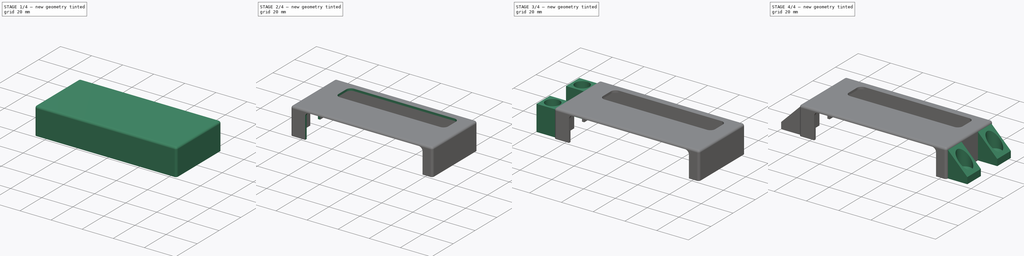
[diagram: build sequence overview — one tinted view per stage of 4, left to right]
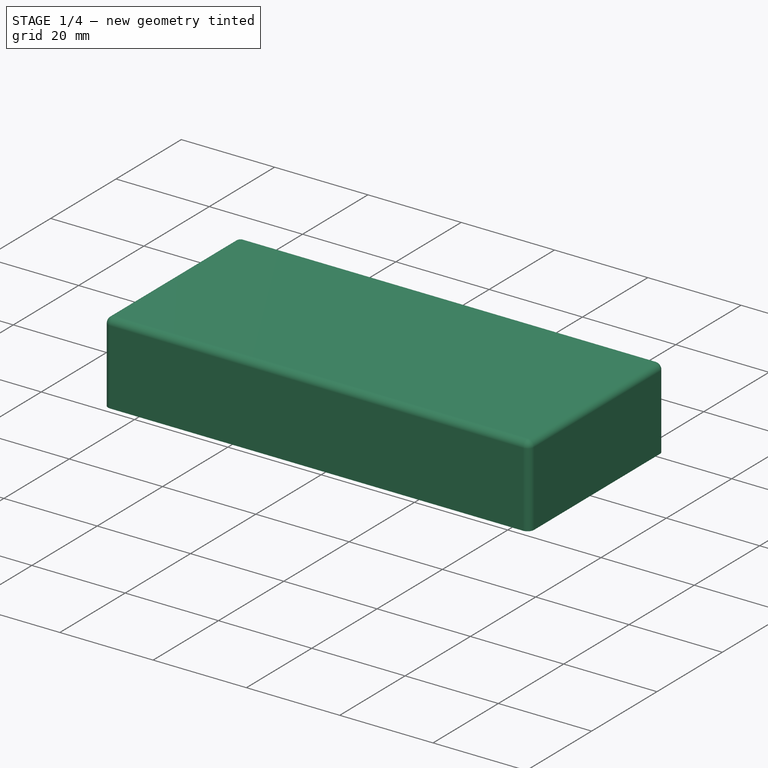
[diagram: stage 1 of 4 — iso view after this stage's code; geometry added in this stage tinted green]
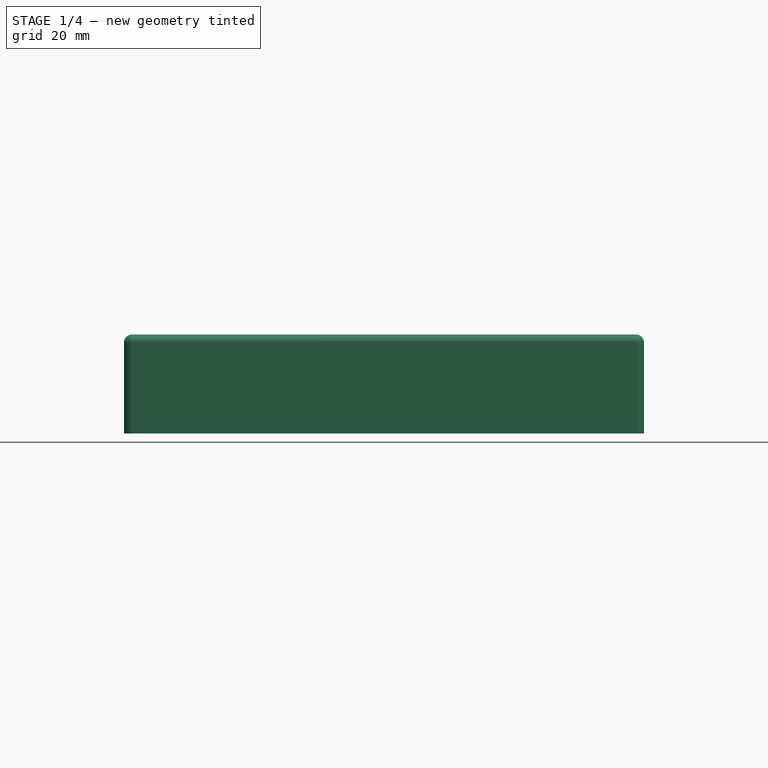
[diagram: stage 1 of 4 — front view after this stage's code; geometry added in this stage tinted green]
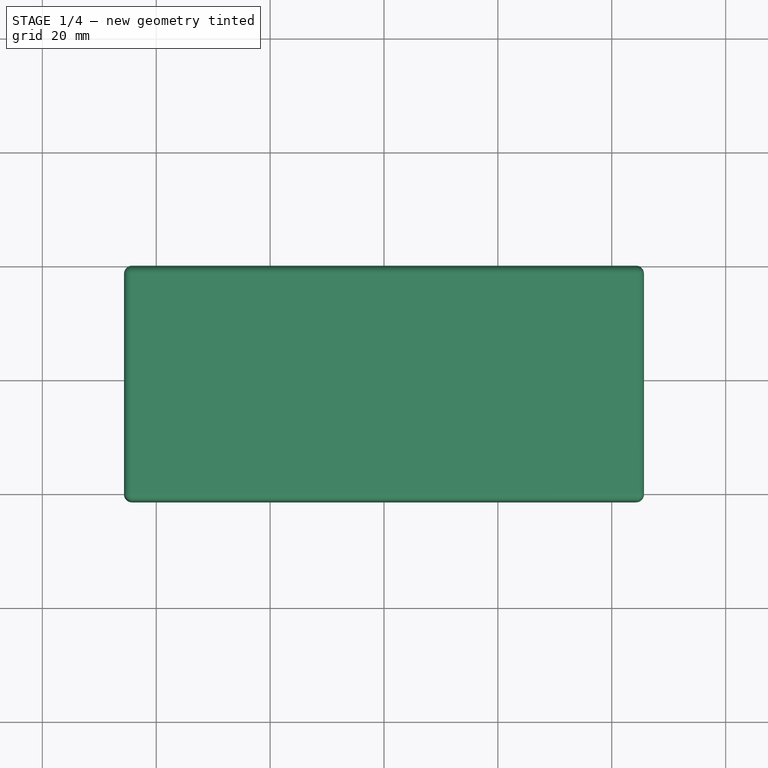
[diagram: stage 1 of 4 — top view after this stage's code; geometry added in this stage tinted green]
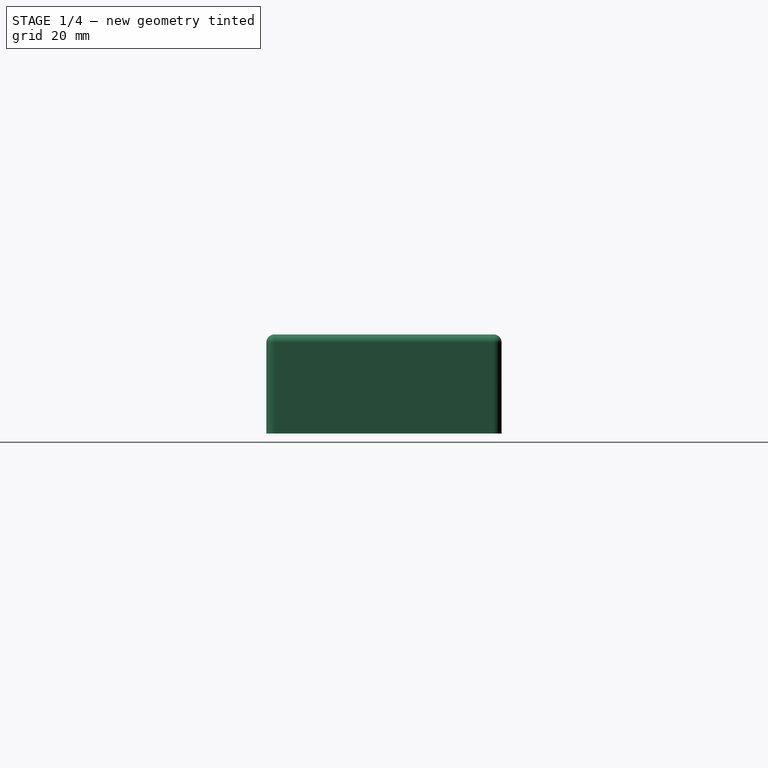
[diagram: stage 1 of 4 — right view after this stage's code; geometry added in this stage tinted green]
FCSTD DOCUMENT  (FreeCAD 0.20RUnknown)
Label: Serpent-UsbHub
License: All rights reserved
LicenseURL: http://en.wikipedia.org/wiki/All_rights_reserved
objects: Sketcher::SketchObject×8, PartDesign::Pocket×4, PartDesign::Pad×3, PartDesign::Thickness×1, PartDesign::Hole×1, PartDesign::Mirrored×1, PartDesign::Body×1
note: 28 computed .brp shape members not serialized (recipe doc carries the construction recipe); baked Part::Feature solids carry a one-line shape summary decoded from their .brp

FEATURE [Sketcher::SketchObject] Sketch
  FullyConstrained = true
  MapMode = 5
  Support = -> [XY_Plane]
  sketch-geometry (4):
    g0: LineSegment StartX=-44.25 StartY=0 StartZ=0 EndX=44.25 EndY=0 EndZ=0
    g1: LineSegment StartX=44.25 StartY=0 StartZ=0 EndX=44.25 EndY=38.5 EndZ=0
    g2: LineSegment StartX=44.25 StartY=38.5 StartZ=0 EndX=-44.25 EndY=38.5 EndZ=0
    g3: LineSegment StartX=-44.25 StartY=38.5 StartZ=0 EndX=-44.25 EndY=0 EndZ=0
  constraints (11):
    c: Coincident(g0,g1)
    c: Coincident(g1,g2)
    c: Coincident(g2,g3)
    c: Coincident(g3,g0)
    c: Horizontal(g2)
    c: Vertical(g1)
    c: Vertical(g3)
    c: PointOnObject(g-1,g0)
    c: Symmetric(g0,g0,g-2)
    c: DistanceX(g0,g0) = 88.5
    c: DistanceY(g0,g2) = 38.5
FEATURE [PartDesign::Pad] Pad  label="SwitchBox"
  Direction = (0,0,1)
  Length = 16
  Length2 = 10
  Profile = -> Sketch
  ReferenceAxis = -> Sketch [N_Axis]
  Type = 0
FEATURE [PartDesign::Thickness] Thickness  label="HolderHollow"
  Base = -> Pad [Face5]
  BaseFeature = -> Pad
  Intersection = false
  Join = 0
  Mode = 0
  SupportTransform = false
  Value = 1.4
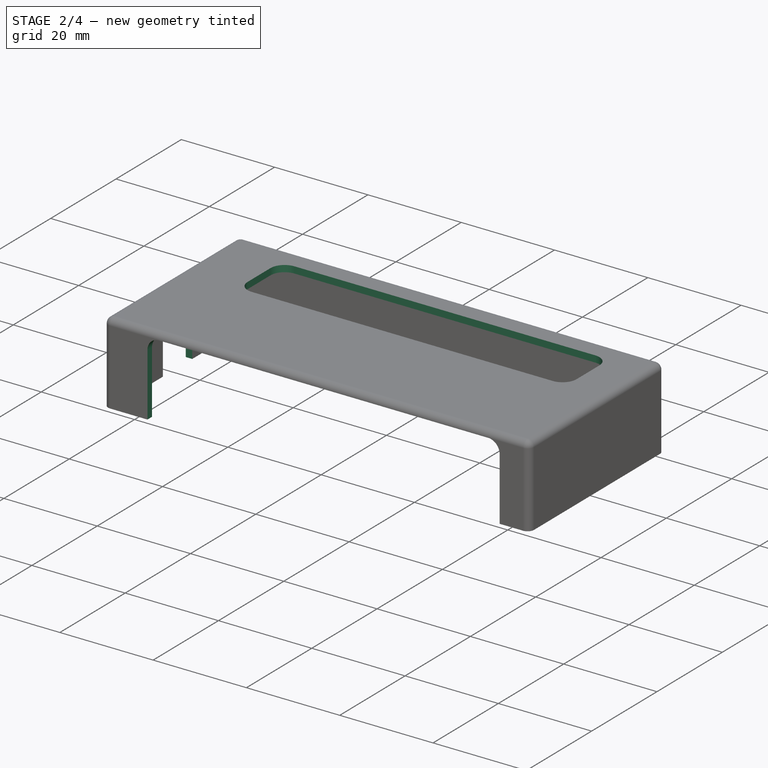
[diagram: stage 2 of 4 — iso view after this stage's code; geometry added in this stage tinted green]
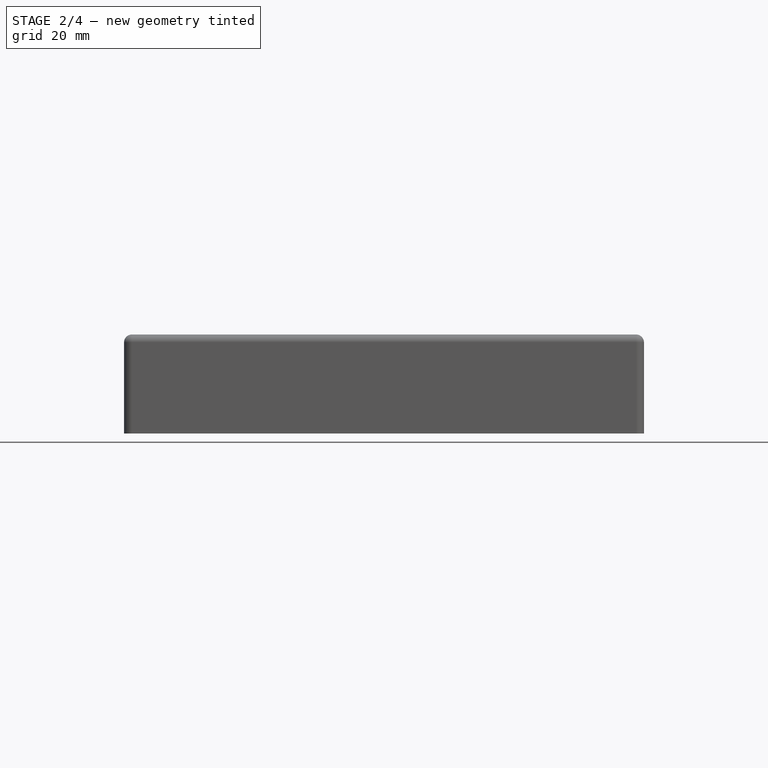
[diagram: stage 2 of 4 — front view after this stage's code; geometry added in this stage tinted green]
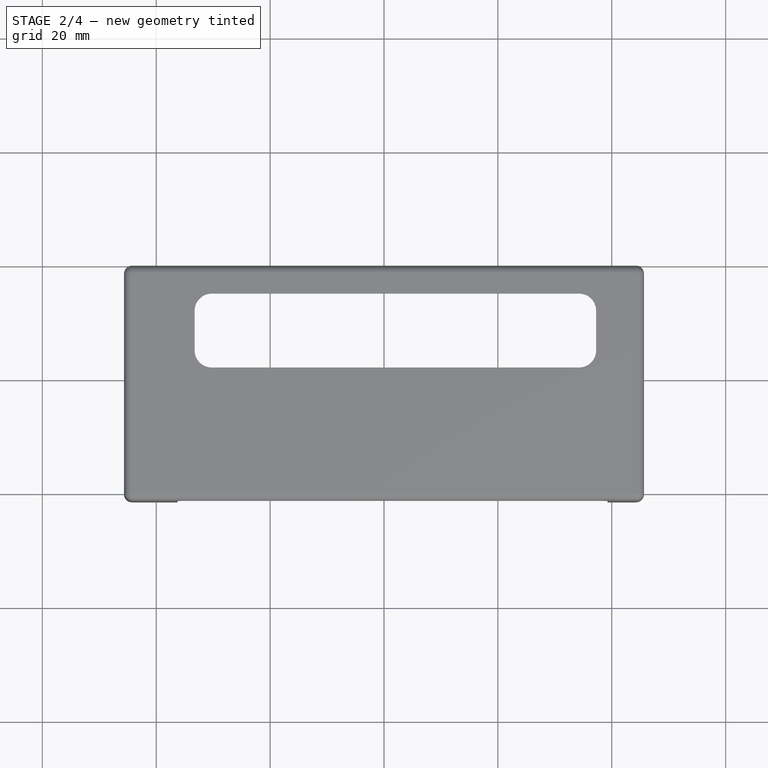
[diagram: stage 2 of 4 — top view after this stage's code; geometry added in this stage tinted green]
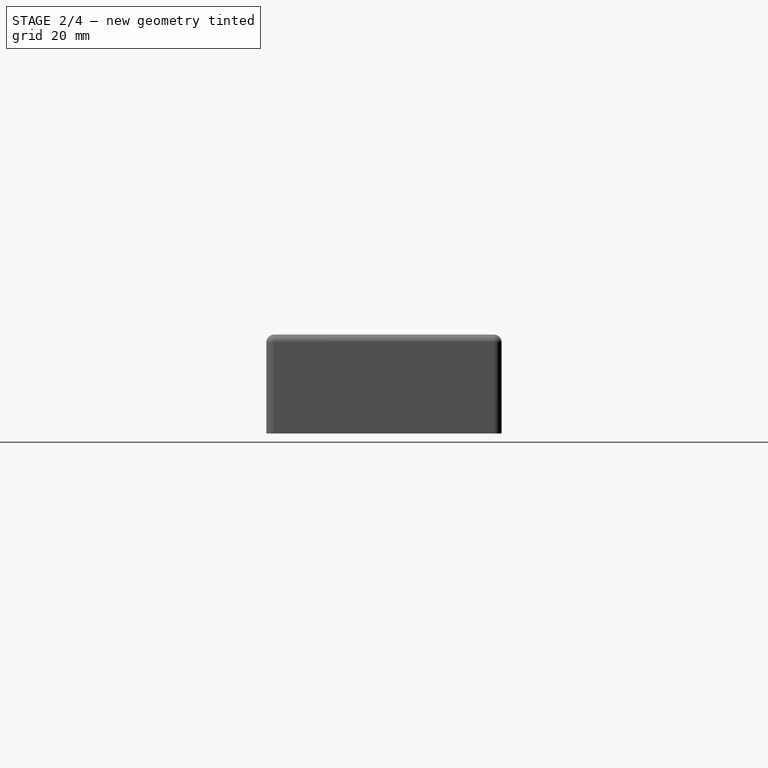
[diagram: stage 2 of 4 — right view after this stage's code; geometry added in this stage tinted green]
FEATURE [Sketcher::SketchObject] Sketch001
  ExternalGeometry = -> [Thickness]
  FullyConstrained = true
  MapMode = 5
  Placement = pos=(-45.65,0,0) rot=(0.57735,-0.57735,-0.57735;2.0944rad)
  Support = -> [Thickness]
  sketch-geometry (9):
    g0: LineSegment StartX=-38.5 StartY=0 StartZ=0 EndX=-19.25 EndY=0 EndZ=0
    g1: LineSegment StartX=-19.25 StartY=0 StartZ=0 EndX=0 EndY=0 EndZ=0
    g2: LineSegment StartX=-19.25 StartY=0 StartZ=0 EndX=-19.25 EndY=9 EndZ=0
    g3: LineSegment StartX=-23.75 StartY=-4e-16 StartZ=0 EndX=-23.75 EndY=9 EndZ=0
    g4: LineSegment StartX=-14.75 StartY=-2e-16 StartZ=0 EndX=-14.75 EndY=9 EndZ=0
    g5: LineSegment StartX=-19.25 StartY=9 StartZ=0 EndX=-14.75 EndY=9 EndZ=0
    g6: ArcOfCircle CenterX=-19.25 CenterY=9 CenterZ=0 NormalX=0 NormalY=0 NormalZ=1 AngleXU=0 Radius=4.5 StartAngle=0 EndAngle=3.14159
    g7: LineSegment StartX=-23.75 StartY=-4e-16 StartZ=0 EndX=-14.75 EndY=-2e-16 EndZ=0
    g8: LineSegment StartX=-23.75 StartY=9 StartZ=0 EndX=-19.25 EndY=9 EndZ=0
  constraints (24):
    c: Coincident(g0,g-4)
    c: PointOnObject(g0,g-3)
    c: Coincident(g1,g0)
    c: Coincident(g1,g-3)
    c: Equal(g0,g1)
    c: Coincident(g2,g0)
    c: Vertical(g2)
    c: PointOnObject(g3,g0)
    c: Vertical(g3)
    c: PointOnObject(g4,g1)
    c: Vertical(g4)
    c: Coincident(g5,g4)
    c: Horizontal(g5)
    c: Coincident(g6,g3)
    c: Coincident(g6,g4)
    c: Diameter(g6) = 9
    c: Coincident(g7,g3)
    c: Coincident(g7,g4)
    c: DistanceY(g4,g4) = 9
    c: Coincident(g6,g5)
    c: Coincident(g8,g3)
    c: Coincident(g8,g6)
    c: Horizontal(g8)
    c: Coincident(g6,g2)
FEATURE [PartDesign::Pocket] Pocket  label="Kabelloch"
  BaseFeature = -> Thickness
  Direction = (1,0,0)
  Length = 0
  Length2 = 5
  Profile = -> Sketch001
  ReferenceAxis = -> Sketch001 [N_Axis]
  Type = 2
FEATURE [Sketcher::SketchObject] Sketch002
  ExternalGeometry = -> [Pocket]
  FullyConstrained = true
  MapMode = 5
  Placement = pos=(0,0,17.4) rot=(0,0,1;0rad)
  Support = -> [Pocket]
  sketch-geometry (10):
    g0: ArcOfCircle CenterX=-30.25 CenterY=32 CenterZ=0 NormalX=0 NormalY=0 NormalZ=1 AngleXU=0 Radius=3 StartAngle=1.5708 EndAngle=3.14159
    g1: LineSegment StartX=-30.25 StartY=35 StartZ=0 EndX=34.25 EndY=35 EndZ=0
    g2: ArcOfCircle CenterX=34.25 CenterY=32 CenterZ=0 NormalX=0 NormalY=0 NormalZ=1 AngleXU=0 Radius=3 StartAngle=5e-16 EndAngle=1.5708
    g3: LineSegment StartX=37.25 StartY=32 StartZ=0 EndX=37.25 EndY=25 EndZ=0
    g4: ArcOfCircle CenterX=34.25 CenterY=25 CenterZ=0 NormalX=0 NormalY=0 NormalZ=1 AngleXU=0 Radius=3 StartAngle=4.71239 EndAngle=6.28319
    g5: LineSegment StartX=34.25 StartY=22 StartZ=0 EndX=-30.25 EndY=22 EndZ=0
    g6: ArcOfCircle CenterX=-30.25 CenterY=25 CenterZ=0 NormalX=0 NormalY=0 NormalZ=1 AngleXU=0 Radius=3 StartAngle=3.14159 EndAngle=4.71239
    g7: LineSegment StartX=-33.25 StartY=25 StartZ=0 EndX=-33.25 EndY=32 EndZ=0
    g8: GeomPoint X=-33.25 Y=35 Z=0
    g9: GeomPoint X=37.25 Y=22 Z=0
  constraints (24):
    c: Tangent(g0,g1) = 1.5708
    c: Tangent(g1,g2) = 1.5708
    c: Tangent(g2,g3) = 1.5708
    c: Tangent(g3,g4) = 1.5708
    c: Tangent(g4,g5) = 1.5708
    c: Tangent(g5,g6) = 1.5708
    c: Tangent(g6,g7) = 1.5708
    c: Tangent(g7,g0) = 1.5708
    c: Horizontal(g1)
    c: Horizontal(g5)
    c: Vertical(g3)
    c: Vertical(g7)
    c: Equal(g0,g2)
    c: Equal(g2,g4)
    c: PointOnObject(g8,g1)
    c: PointOnObject(g8,g7)
    c: PointOnObject(g9,g3)
    c: PointOnObject(g9,g5)
    c: DistanceX(g-6,g8) = 11  'TopRahmen'
    c: DistanceX(g9,g-5) = 7
    c: Diameter(g0) = 6
    c: Equal(g6,g0)
    c: DistanceY(g5,g0) = 13
    c: DistanceY(g8,g-6) = 3.5
FEATURE [PartDesign::Pocket] Pocket001  label="TopLoch"
  BaseFeature = -> Pocket
  Direction = (0,0,-1)
  Length = 5
  Length2 = 5
  Profile = -> Sketch002
  ReferenceAxis = -> Sketch002 [N_Axis]
  Type = 0
FEATURE [Sketcher::SketchObject] Sketch003
  ExternalGeometry = -> [Pocket001]
  FullyConstrained = true
  MapMode = 5
  Placement = pos=(0,-1.4,0) rot=(1,0,0;1.5708rad)
  Support = -> [Pocket001]
  sketch-geometry (8):
    g0: LineSegment StartX=39.25 StartY=0 StartZ=0 EndX=-36.25 EndY=0 EndZ=0
    g1: LineSegment StartX=-36.25 StartY=0 StartZ=0 EndX=-36.25 EndY=13.5 EndZ=0
    g2: ArcOfCircle CenterX=-33.75 CenterY=13.5 CenterZ=0 NormalX=0 NormalY=0 NormalZ=1 AngleXU=0 Radius=2.5 StartAngle=1.5708 EndAngle=3.14159
    g3: LineSegment StartX=-33.75 StartY=16 StartZ=0 EndX=36.75 EndY=16 EndZ=0
    g4: ArcOfCircle CenterX=36.75 CenterY=13.5 CenterZ=0 NormalX=0 NormalY=0 NormalZ=1 AngleXU=0 Radius=2.5 StartAngle=2e-16 EndAngle=1.5708
    g5: LineSegment StartX=39.25 StartY=13.5 StartZ=0 EndX=39.25 EndY=0 EndZ=0
    g6: GeomPoint X=39.25 Y=0 Z=0
    g7: GeomPoint X=-36.25 Y=16 Z=0
  constraints (20):
    c: Tangent(g1,g2) = 1.5708
    c: Tangent(g2,g3) = 1.5708
    c: Tangent(g3,g4) = 1.5708
    c: Tangent(g4,g5) = 1.5708
    c: Horizontal(g0)
    c: Horizontal(g3)
    c: Vertical(g1)
    c: Vertical(g5)
    c: Equal(g2,g4)
    c: PointOnObject(g6,g0)
    c: PointOnObject(g6,g5)
    c: PointOnObject(g7,g1)
    c: PointOnObject(g7,g3)
    c: PointOnObject(g6,g-3)
    c: PointOnObject(g7,g-4)
    c: DistanceX(g6,g-3) = 5
    c: Diameter(g2) = 5
    c: DistanceX(g-3,g7) = 8
    c: Coincident(g0,g5)
    c: Coincident(g0,g1)
FEATURE [PartDesign::Pocket] Pocket002  label="UsbLoch"
  BaseFeature = -> Pocket001
  Direction = (0,1,-2e-16)
  Length = 5
  Length2 = 5
  Profile = -> Sketch003
  ReferenceAxis = -> Sketch003 [N_Axis]
  Type = 0
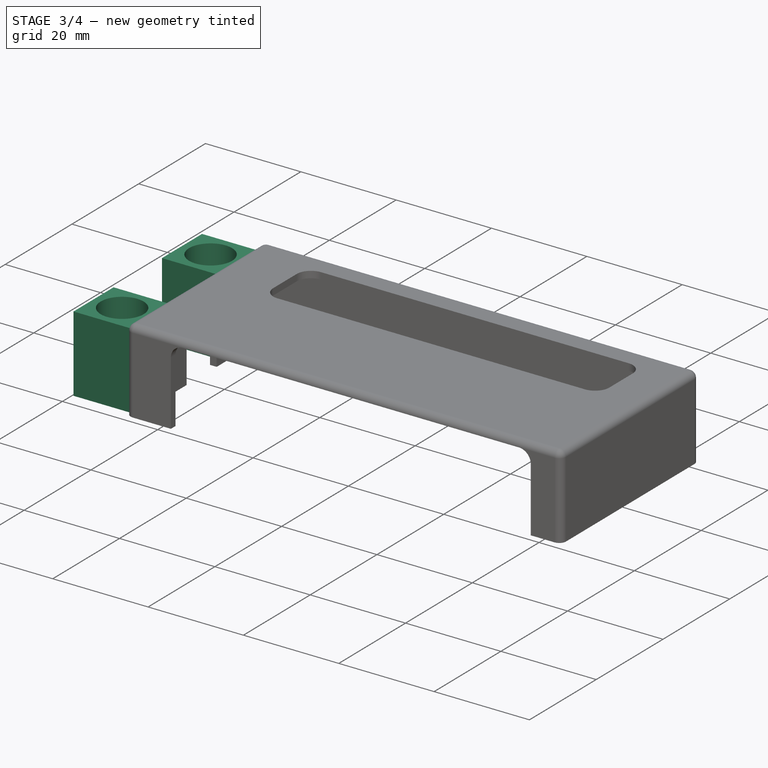
[diagram: stage 3 of 4 — iso view after this stage's code; geometry added in this stage tinted green]
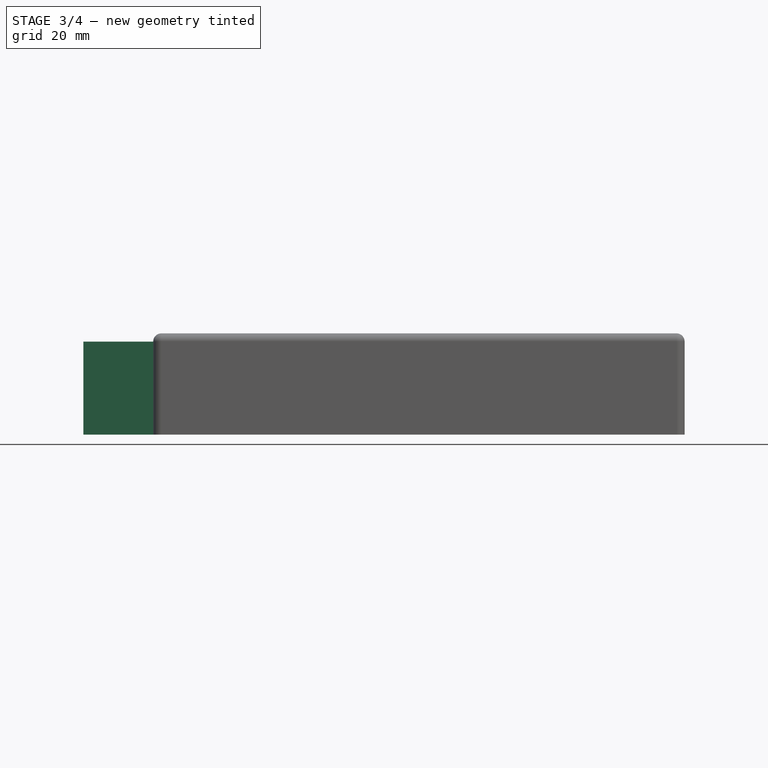
[diagram: stage 3 of 4 — front view after this stage's code; geometry added in this stage tinted green]
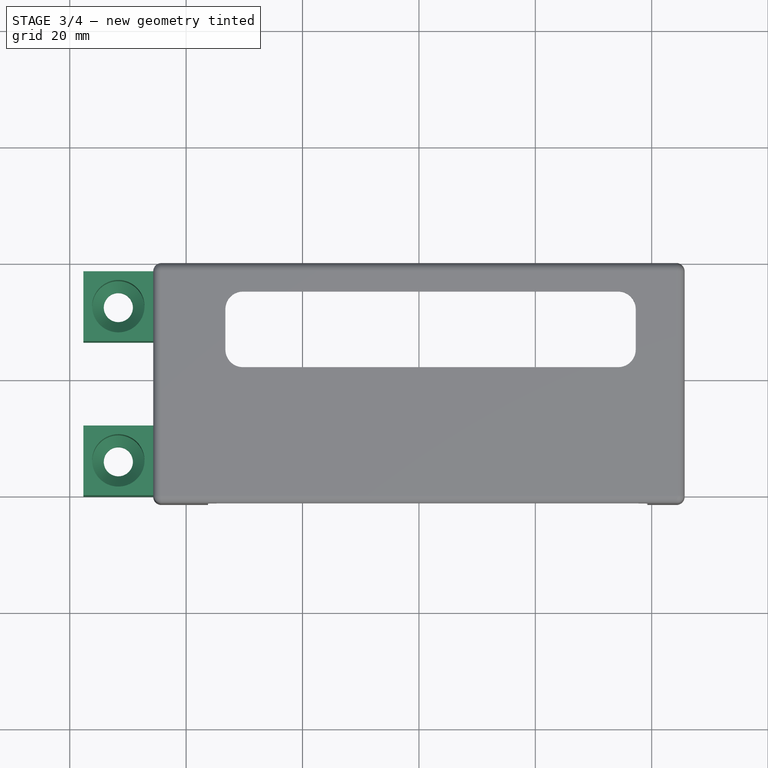
[diagram: stage 3 of 4 — top view after this stage's code; geometry added in this stage tinted green]
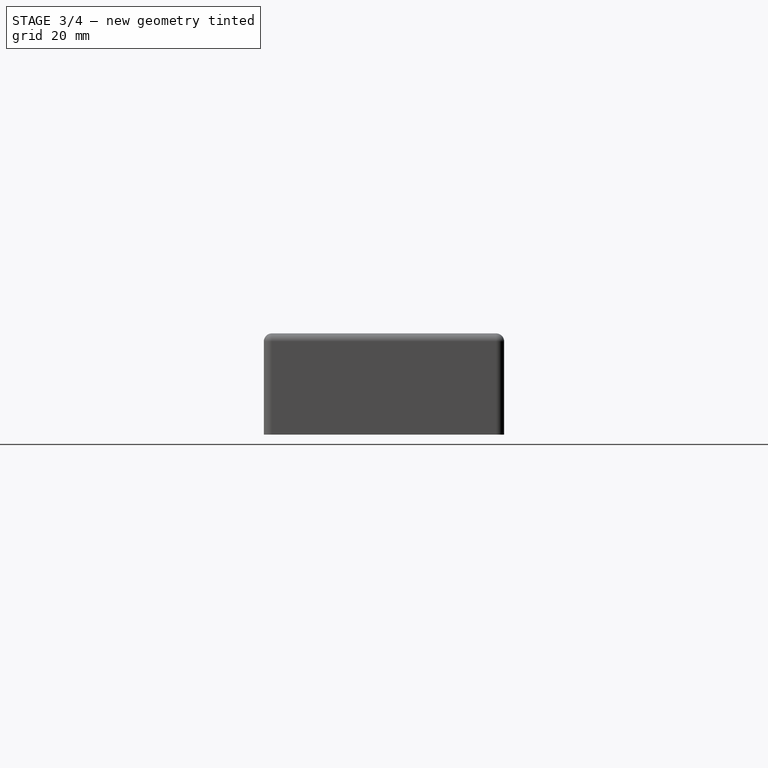
[diagram: stage 3 of 4 — right view after this stage's code; geometry added in this stage tinted green]
FEATURE [Sketcher::SketchObject] Sketch004
  ExternalGeometry = -> [Pocket002]
  FullyConstrained = true
  MapMode = 5
  Placement = pos=(-45.65,0,0) rot=(0.57735,-0.57735,-0.57735;2.0944rad)
  Support = -> [Pocket002]
  sketch-geometry (8):
    g0: LineSegment StartX=-38.5 StartY=0 StartZ=0 EndX=-26.5 EndY=0 EndZ=0
    g1: LineSegment StartX=-26.5 StartY=0 StartZ=0 EndX=-26.5 EndY=4 EndZ=0
    g2: LineSegment StartX=-26.5 StartY=4 StartZ=0 EndX=-38.5 EndY=4 EndZ=0
    g3: LineSegment StartX=-38.5 StartY=4 StartZ=0 EndX=-38.5 EndY=0 EndZ=0
    g4: LineSegment StartX=0 StartY=0 StartZ=0 EndX=-12 EndY=0 EndZ=0
    g5: LineSegment StartX=-12 StartY=0 StartZ=0 EndX=-12 EndY=4 EndZ=0
    g6: LineSegment StartX=-12 StartY=4 StartZ=0 EndX=0 EndY=4 EndZ=0
    g7: LineSegment StartX=0 StartY=4 StartZ=0 EndX=0 EndY=0 EndZ=0
  constraints (22):
    c: Coincident(g0,g1)
    c: Coincident(g1,g2)
    c: Coincident(g2,g3)
    c: Coincident(g3,g0)
    c: Horizontal(g0)
    c: Horizontal(g2)
    c: Vertical(g1)
    c: Vertical(g3)
    c: Coincident(g0,g-3)
    c: DistanceX(g0,g0) = 12
    c: Coincident(g4,g5)
    c: Coincident(g5,g6)
    c: Coincident(g6,g7)
    c: Coincident(g7,g4)
    c: Horizontal(g4)
    c: Horizontal(g6)
    c: Vertical(g5)
    c: Vertical(g7)
    c: Coincident(g4,g-4)
    c: Equal(g4,g0)
    c: Equal(g1,g5)
    c: DistanceY(g0,g2) = 4
FEATURE [PartDesign::Pad] Pad001  label="Schraubenhalter"
  BaseFeature = -> Pocket002
  Direction = (-1,0,0)
  Length = 12
  Length2 = 10
  Profile = -> Sketch004
  ReferenceAxis = -> Sketch004 [N_Axis]
  Type = 0
FEATURE [Sketcher::SketchObject] Sketch005
  ExternalGeometry = -> [Pad001]
  FullyConstrained = true
  MapMode = 5
  Placement = pos=(0,0,4) rot=(0,0,1;0rad)
  Support = -> [Pad001]
  sketch-geometry (8):
    g0: Circle CenterX=-51.65 CenterY=32.5 CenterZ=0 NormalX=0 NormalY=0 NormalZ=1 AngleXU=0 Radius=2.5
    g1: Circle CenterX=-51.65 CenterY=6 CenterZ=0 NormalX=0 NormalY=0 NormalZ=1 AngleXU=0 Radius=2.5
    g2: LineSegment StartX=-57.65 StartY=12 StartZ=0 EndX=-51.65 EndY=6 EndZ=0
    g3: LineSegment StartX=-51.65 StartY=6 StartZ=0 EndX=-57.65 EndY=0 EndZ=0
    g4: LineSegment StartX=-45.65 StartY=0 StartZ=0 EndX=-51.65 EndY=6 EndZ=0
    g5: LineSegment StartX=-57.65 StartY=26.5 StartZ=0 EndX=-51.65 EndY=32.5 EndZ=0
    g6: LineSegment StartX=-51.65 StartY=32.5 StartZ=0 EndX=-57.65 EndY=38.5 EndZ=0
    g7: LineSegment StartX=-45.65 StartY=38.5 StartZ=0 EndX=-51.65 EndY=32.5 EndZ=0
  constraints (18):
    c: Equal(g1,g0)
    c: Diameter(g0) = 5
    c: Coincident(g2,g-7)
    c: Coincident(g2,g1)
    c: Coincident(g3,g1)
    c: Coincident(g3,g-8)
    c: Coincident(g4,g-8)
    c: Coincident(g1,g4)
    c: Equal(g2,g3)
    c: Equal(g3,g4)
    c: Coincident(g5,g-6)
    c: Coincident(g5,g0)
    c: Coincident(g6,g0)
    c: Coincident(g6,g-3)
    c: Coincident(g7,g-3)
    c: Coincident(g7,g0)
    c: Equal(g5,g6)
    c: Equal(g6,g7)
FEATURE [PartDesign::Hole] Hole  label="Schraubenloecher"
  BaseFeature = -> Pad001
  CustomThreadClearance = 0
  Depth = 25
  DepthType = 0
  Diameter = 5
  DrillForDepth = false
  DrillPoint = 1
  DrillPointAngle = 118
  HoleCutCountersinkAngle = 90
  HoleCutCustomValues = false
  HoleCutDepth = 0
  HoleCutDiameter = 9
  HoleCutType = 2
  ModelThread = false
  Profile = -> Sketch005
  Tapered = false
  TaperedAngle = 90
  ThreadClass = 0
  ThreadDepth = 25
  ThreadDepthType = 0
  ThreadDirection = 0
  ThreadFit = 0
  ThreadSize = 0
  ThreadType = 0
  Threaded = false
  UseCustomThreadClearance = false
FEATURE [Sketcher::SketchObject] Sketch006
  ExternalGeometry = -> [Hole]
  FullyConstrained = true
  MapMode = 5
  Placement = pos=(0,0,4) rot=(0,0,1;0rad)
  Support = -> [Hole]
  sketch-geometry (10):
    g0: Circle CenterX=-51.65 CenterY=6 CenterZ=0 NormalX=0 NormalY=0 NormalZ=1 AngleXU=0 Radius=4.5
    g1: Circle CenterX=-51.65 CenterY=32.5 CenterZ=0 NormalX=0 NormalY=0 NormalZ=1 AngleXU=0 Radius=4.5
    g2: LineSegment StartX=-57.65 StartY=12 StartZ=0 EndX=-45.65 EndY=12 EndZ=0
    g3: LineSegment StartX=-45.65 StartY=12 StartZ=0 EndX=-45.65 EndY=0 EndZ=0
    g4: LineSegment StartX=-45.65 StartY=0 StartZ=0 EndX=-57.65 EndY=0 EndZ=0
    g5: LineSegment StartX=-57.65 StartY=0 StartZ=0 EndX=-57.65 EndY=12 EndZ=0
    g6: LineSegment StartX=-57.65 StartY=38.5 StartZ=0 EndX=-45.65 EndY=38.5 EndZ=0
    g7: LineSegment StartX=-45.65 StartY=38.5 StartZ=0 EndX=-45.65 EndY=26.5 EndZ=0
    g8: LineSegment StartX=-45.65 StartY=26.5 StartZ=0 EndX=-57.65 EndY=26.5 EndZ=0
    g9: LineSegment StartX=-57.65 StartY=26.5 StartZ=0 EndX=-57.65 EndY=38.5 EndZ=0
  constraints (24):
    c: Coincident(g0,g-7)
    c: Coincident(g1,g-5)
    c: Equal(g1,g-5)
    c: Equal(g0,g-7)
    c: Coincident(g2,g3)
    c: Coincident(g3,g4)
    c: Coincident(g4,g5)
    c: Coincident(g5,g2)
    c: Horizontal(g2)
    c: Horizontal(g4)
    c: Vertical(g3)
    c: Vertical(g5)
    c: Coincident(g2,g-8)
    c: Coincident(g3,g-9)
    c: Coincident(g6,g7)
    c: Coincident(g7,g8)
    c: Coincident(g8,g9)
    c: Coincident(g9,g6)
    c: Horizontal(g6)
    c: Horizontal(g8)
    c: Vertical(g7)
    c: Vertical(g9)
    c: Coincident(g6,g-6)
    c: Coincident(g7,g-10)
FEATURE [PartDesign::Pad] Pad002  label="SchraubenloecherPad"
  BaseFeature = -> Hole
  Direction = (0,0,1)
  Length = 11.99
  Length2 = 10
  Profile = -> Sketch006
  ReferenceAxis = -> Sketch006 [N_Axis]
  Type = 0
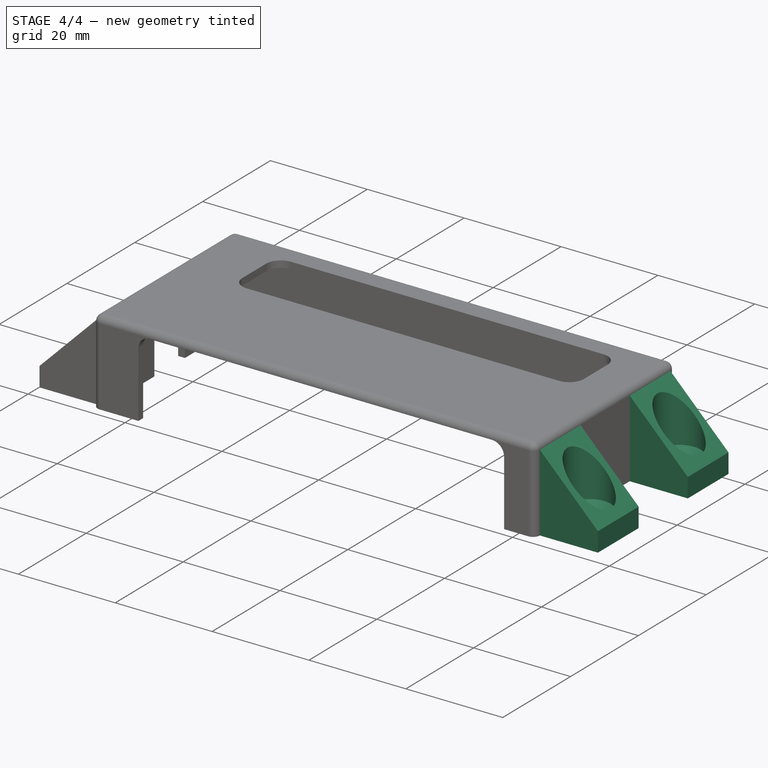
[diagram: stage 4 of 4 — iso view after this stage's code; geometry added in this stage tinted green]
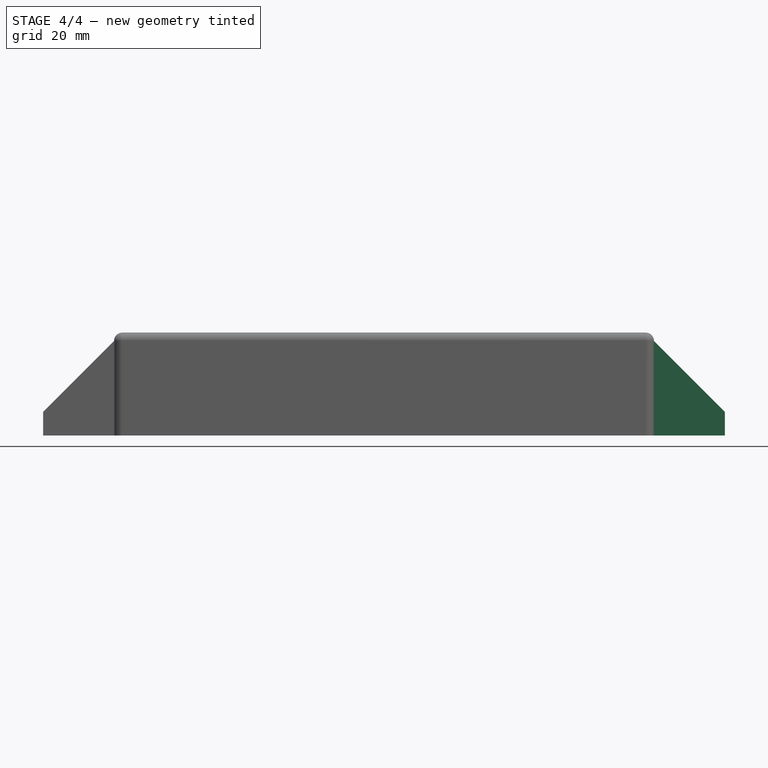
[diagram: stage 4 of 4 — front view after this stage's code; geometry added in this stage tinted green]
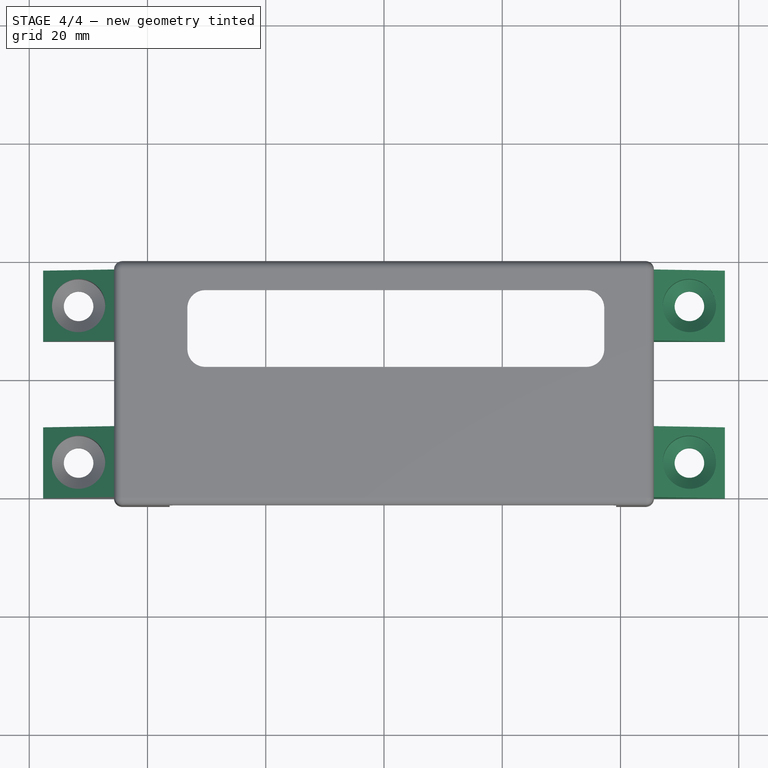
[diagram: stage 4 of 4 — top view after this stage's code; geometry added in this stage tinted green]
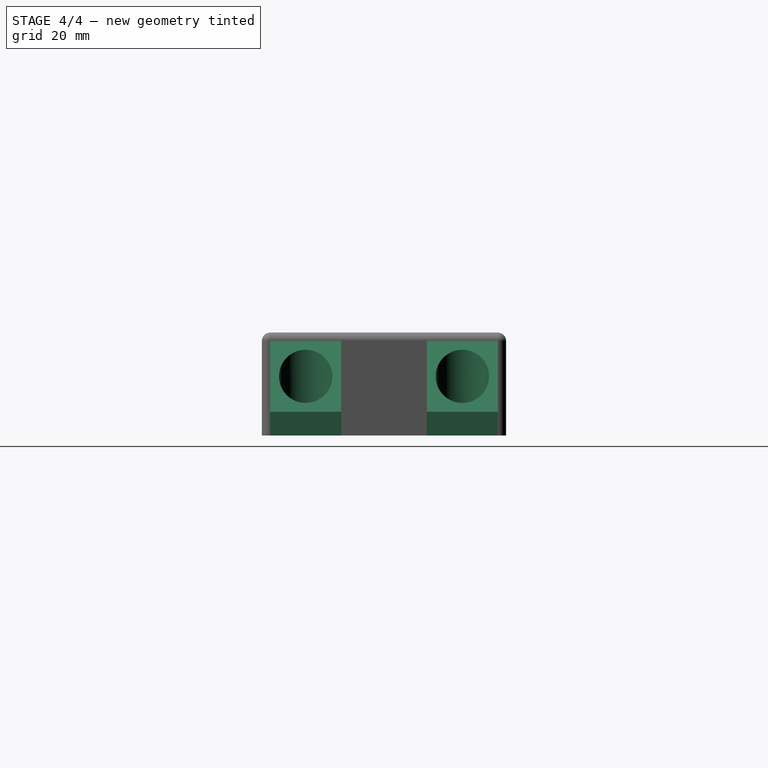
[diagram: stage 4 of 4 — right view after this stage's code; geometry added in this stage tinted green]
FEATURE [Sketcher::SketchObject] Sketch007
  ExternalGeometry = -> [Pad002]
  FullyConstrained = true
  MapMode = 5
  Placement = pos=(0,38.5,0) rot=(0,0.707107,0.707107;3.14159rad)
  Support = -> [Pad002]
  sketch-geometry (3):
    g0: LineSegment StartX=45.65 StartY=15.99 StartZ=0 EndX=57.65 EndY=15.99 EndZ=0
    g1: LineSegment StartX=57.65 StartY=15.99 StartZ=0 EndX=57.65 EndY=4 EndZ=0
    g2: LineSegment StartX=57.65 StartY=4 StartZ=0 EndX=45.65 EndY=15.99 EndZ=0
  constraints (6):
    c: Coincident(g0,g-3)
    c: Coincident(g0,g-4)
    c: Coincident(g1,g0)
    c: Coincident(g1,g-4)
    c: Coincident(g2,g1)
    c: Coincident(g2,g0)
FEATURE [PartDesign::Pocket] Pocket003  label="SchraubenloecherChamfer"
  BaseFeature = -> Pad002
  Direction = (0,-1,2e-16)
  Length = 5
  Length2 = 5
  Profile = -> Sketch007
  ReferenceAxis = -> Sketch007 [N_Axis]
  Type = 1
FEATURE [PartDesign::Mirrored] Mirrored
  BaseFeature = -> Pocket003
  MirrorPlane = -> YZ_Plane
  Originals = -> [Pad001,Hole,Pad002,Pocket003]
FEATURE [PartDesign::Body] Body
  Group = -> [Sketch,Pad,Thickness,Sketch001,Pocket,Sketch002,Pocket001,Sketch003,Pocket002,Sketch004,Pad001,Sketch005,Hole,Sketch006,Pad002,Sketch007,Pocket003,Mirrored]
  Origin = -> Origin
  Tip = -> Mirrored
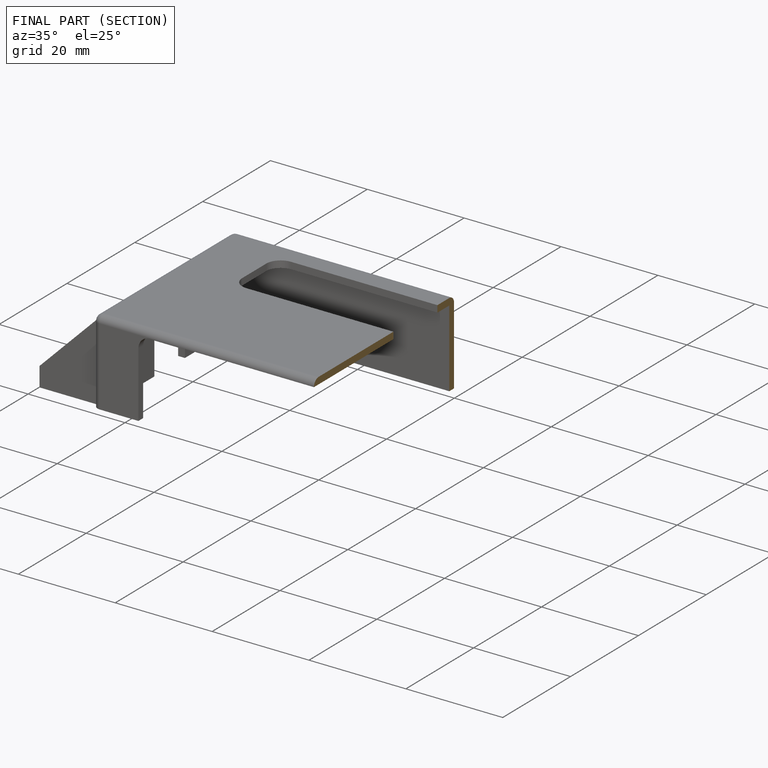
[diagram: finished part — half-section view (interior)]
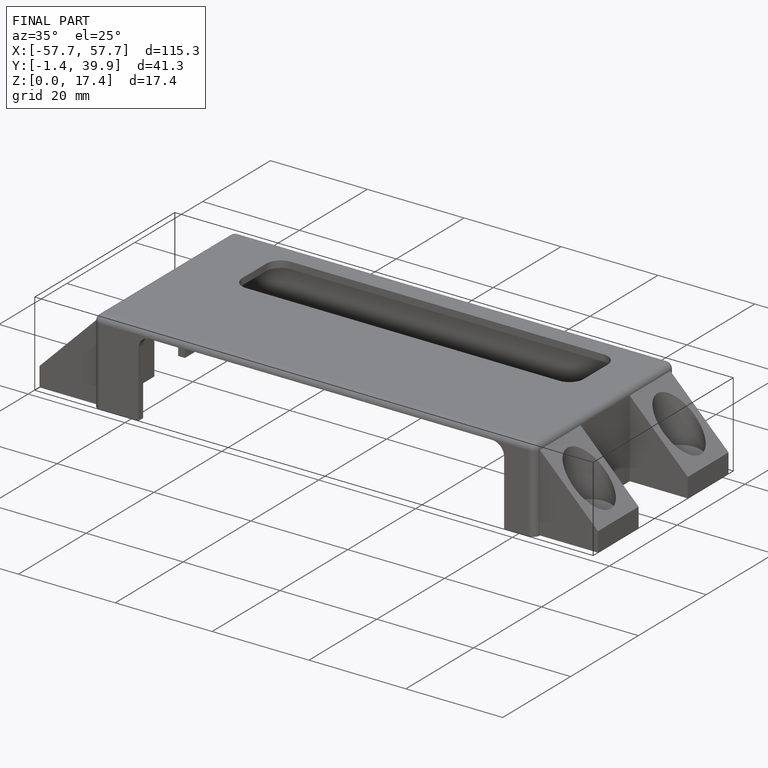
[diagram: finished part — iso view with bounding-box wireframe]
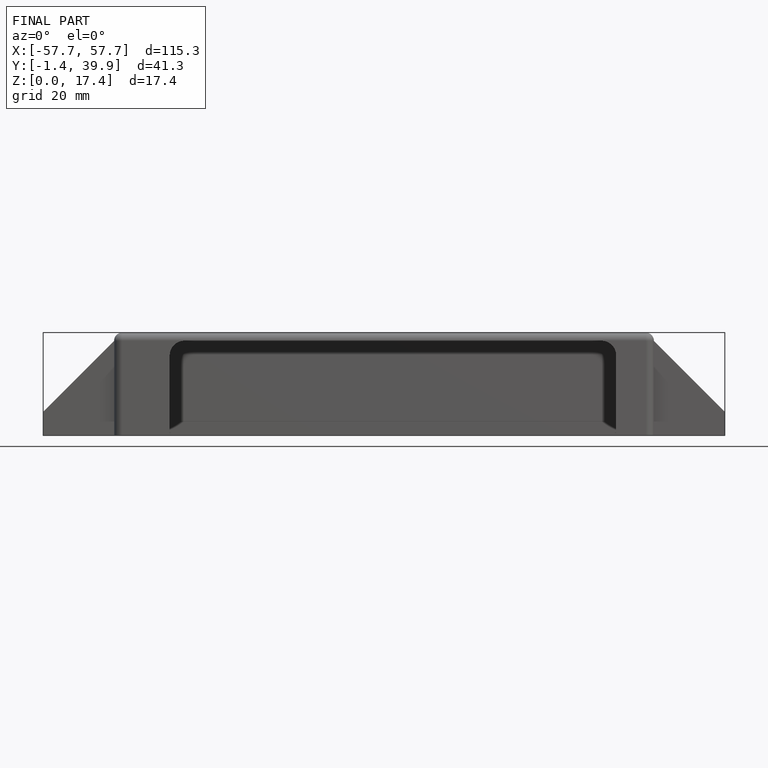
[diagram: finished part — front view with bounding-box wireframe]
